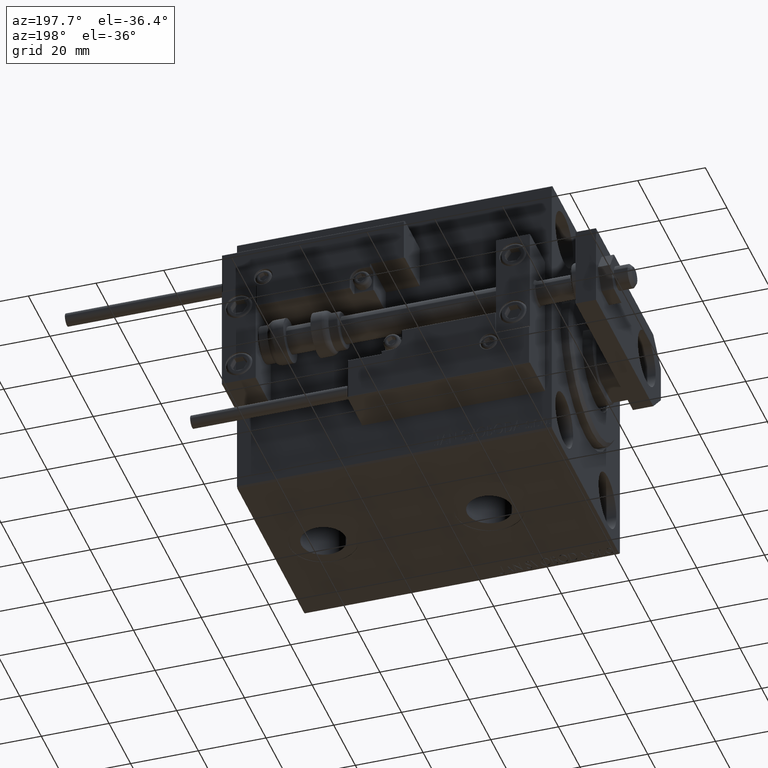
[diagram: clean part render]
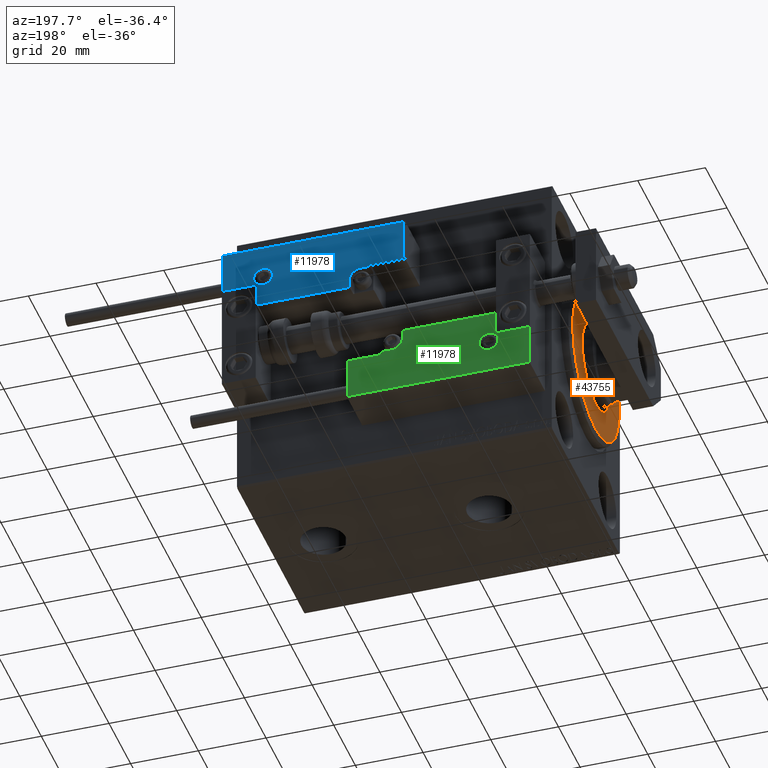
[diagram: same view with three faces highlighted in distinct colors, each labeled with its STEP entity id]
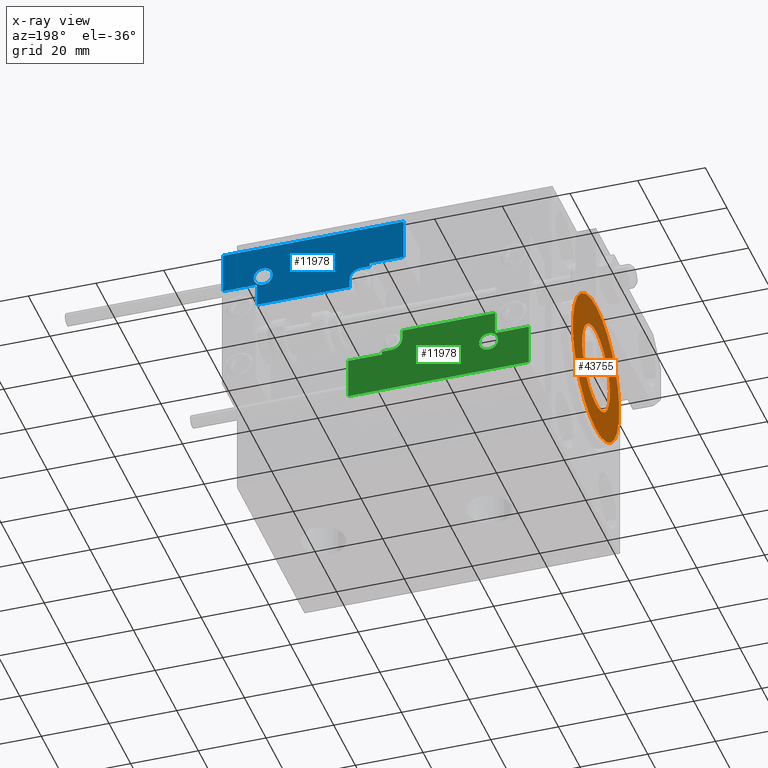
[diagram: x-ray of the same camera — body ghosted, the three highlighted faces saturated]
A machine part, auxiliary view with three faces highlighted in distinct colors.
The next image is the same camera in x-ray (body ghosted, the three faces saturated) — at least one of them is partly hidden behind the body in this view.
Their STEP definitions:

[orange] entity #43755 — the highlighted planar face has unit normal (-1, 0, 0).
#3906 = EDGE_CURVE ( 'NONE', #50449, #18482, #50075, .T. ) ;
#5960 = CIRCLE ( 'NONE', #34213, 21.50000000000000355 ) ;
#6798 = FACE_OUTER_BOUND ( 'NONE', #23059, .T. ) ;
#7332 = ORIENTED_EDGE ( 'NONE', *, *, #3906, .T. ) ;
#9076 = EDGE_CURVE ( 'NONE', #18844, #39266, #5960, .T. ) ;
#9611 = CARTESIAN_POINT ( 'NONE',  ( 3.000000000000000000, 1.561424668912874914E-15, -12.75000000000000000 ) ) ;
#10750 = AXIS2_PLACEMENT_3D ( 'NONE', #42621, #50951, #15493 ) ;
#10964 = DIRECTION ( 'NONE',  ( 0.000000000000000000, 0.000000000000000000, -1.000000000000000000 ) ) ;
#13070 = AXIS2_PLACEMENT_3D ( 'NONE', #42763, #39624, #10964 ) ;
#14222 = CARTESIAN_POINT ( 'NONE',  ( 3.000000000000000000, 0.000000000000000000, 0.000000000000000000 ) ) ;
#14492 = AXIS2_PLACEMENT_3D ( 'NONE', #42144, #25965, #38990 ) ;
#15493 = DIRECTION ( 'NONE',  ( 0.000000000000000000, 0.000000000000000000, -1.000000000000000000 ) ) ;
#15644 = PLANE ( 'NONE',  #13070 ) ;
#16823 = CARTESIAN_POINT ( 'NONE',  ( 3.000000000000000000, 0.000000000000000000, 21.50000000000000355 ) ) ;
#17911 = ORIENTED_EDGE ( 'NONE', *, *, #48264, .T. ) ;
#18482 = VERTEX_POINT ( 'NONE', #30743 ) ;
#18844 = VERTEX_POINT ( 'NONE', #19982 ) ;
#19982 = CARTESIAN_POINT ( 'NONE',  ( 3.000000000000000000, 2.694222958124177598E-15, -21.50000000000000355 ) ) ;
#22615 = AXIS2_PLACEMENT_3D ( 'NONE', #14222, #25930, #30367 ) ;
#23059 = EDGE_LOOP ( 'NONE', ( #41789, #48090 ) ) ;
#23207 = CIRCLE ( 'NONE', #10750, 12.75000000000000000 ) ;
#25930 = DIRECTION ( 'NONE',  ( -1.000000000000000000, 0.000000000000000000, -0.000000000000000000 ) ) ;
#25965 = DIRECTION ( 'NONE',  ( 1.000000000000000000, -0.000000000000000000, 0.000000000000000000 ) ) ;
#30367 = DIRECTION ( 'NONE',  ( 0.000000000000000000, 0.000000000000000000, -1.000000000000000000 ) ) ;
#30743 = CARTESIAN_POINT ( 'NONE',  ( 3.000000000000000000, 0.000000000000000000, 12.75000000000000000 ) ) ;
#31530 = FACE_BOUND ( 'NONE', #39768, .T. ) ;
#34213 = AXIS2_PLACEMENT_3D ( 'NONE', #48705, #40374, #36186 ) ;
#36186 = DIRECTION ( 'NONE',  ( 0.000000000000000000, 0.000000000000000000, -1.000000000000000000 ) ) ;
#36894 = EDGE_CURVE ( 'NONE', #39266, #18844, #46967, .T. ) ;
#38990 = DIRECTION ( 'NONE',  ( 0.000000000000000000, 0.000000000000000000, -1.000000000000000000 ) ) ;
#39266 = VERTEX_POINT ( 'NONE', #16823 ) ;
#39624 = DIRECTION ( 'NONE',  ( 1.000000000000000000, -0.000000000000000000, 0.000000000000000000 ) ) ;
#39768 = EDGE_LOOP ( 'NONE', ( #17911, #7332 ) ) ;
#40374 = DIRECTION ( 'NONE',  ( 1.000000000000000000, -0.000000000000000000, 0.000000000000000000 ) ) ;
#41789 = ORIENTED_EDGE ( 'NONE', *, *, #36894, .T. ) ;
#42144 = CARTESIAN_POINT ( 'NONE',  ( 3.000000000000000000, 0.000000000000000000, 0.000000000000000000 ) ) ;
#42621 = CARTESIAN_POINT ( 'NONE',  ( 3.000000000000000000, 0.000000000000000000, 0.000000000000000000 ) ) ;
#42763 = CARTESIAN_POINT ( 'NONE',  ( 3.000000000000000000, 0.000000000000000000, 0.000000000000000000 ) ) ;
#43755 = ADVANCED_FACE ( 'NONE', ( #6798, #31530 ), #15644, .T. ) ;
#46967 = CIRCLE ( 'NONE', #14492, 21.50000000000000355 ) ;
#48090 = ORIENTED_EDGE ( 'NONE', *, *, #9076, .T. ) ;
#48264 = EDGE_CURVE ( 'NONE', #18482, #50449, #23207, .T. ) ;
#48705 = CARTESIAN_POINT ( 'NONE',  ( 3.000000000000000000, 0.000000000000000000, 0.000000000000000000 ) ) ;
#50075 = CIRCLE ( 'NONE', #22615, 12.75000000000000000 ) ;
#50449 = VERTEX_POINT ( 'NONE', #9611 ) ;
#50951 = DIRECTION ( 'NONE',  ( -1.000000000000000000, 0.000000000000000000, -0.000000000000000000 ) ) ;

[blue] entity #11978 — the highlighted planar face has unit normal (0, 1, -0).
#45 = CARTESIAN_POINT ( 'NONE',  ( -26.99999999999993605, 19.70000000000002061, 14.00000000000000000 ) ) ;
#709 = CARTESIAN_POINT ( 'NONE',  ( 16.69999999999999929, 7.300000000000009592, 14.00000000000000000 ) ) ;
#741 = VECTOR ( 'NONE', #18384, 1000.000000000000000 ) ;
#753 = DIRECTION ( 'NONE',  ( 1.000000000000000000, 0.000000000000000000, 0.000000000000000000 ) ) ;
#1245 = ORIENTED_EDGE ( 'NONE', *, *, #35693, .T. ) ;
#1329 = ORIENTED_EDGE ( 'NONE', *, *, #46479, .T. ) ;
#1488 = LINE ( 'NONE', #34026, #45321 ) ;
#1561 = DIRECTION ( 'NONE',  ( 1.000000000000000000, -0.000000000000000000, 0.000000000000000000 ) ) ;
#2394 = DIRECTION ( 'NONE',  ( 0.000000000000000000, -0.000000000000000000, -1.000000000000000000 ) ) ;
#2874 = CARTESIAN_POINT ( 'NONE',  ( -16.69999999999999218, 0.3000000000000032085, 14.00000000000000000 ) ) ;
#3000 = FACE_OUTER_BOUND ( 'NONE', #40027, .T. ) ;
#3265 = VERTEX_POINT ( 'NONE', #40295 ) ;
#3566 = VERTEX_POINT ( 'NONE', #22168 ) ;
#3751 = CARTESIAN_POINT ( 'NONE',  ( 26.70000000000006324, 19.70000000000001705, 14.00000000000000000 ) ) ;
#3898 = CARTESIAN_POINT ( 'NONE',  ( 13.99999999999999822, 3.000000000000002665, 14.00000000000000000 ) ) ;
#4137 = ORIENTED_EDGE ( 'NONE', *, *, #42583, .T. ) ;
#5067 = EDGE_LOOP ( 'NONE', ( #28540, #1329 ) ) ;
#5182 = EDGE_CURVE ( 'NONE', #28315, #33065, #38896, .T. ) ;
#5783 = DIRECTION ( 'NONE',  ( 1.000000000000000000, 0.000000000000000000, 0.000000000000000000 ) ) ;
#7016 = AXIS2_PLACEMENT_3D ( 'NONE', #3898, #19800, #17203 ) ;
#8054 = CARTESIAN_POINT ( 'NONE',  ( 16.69999999999999929, 6.300000000000003375, 14.00000000000000000 ) ) ;
#8920 = VERTEX_POINT ( 'NONE', #22159 ) ;
#10892 = VECTOR ( 'NONE', #1561, 1000.000000000000000 ) ;
#10946 = VERTEX_POINT ( 'NONE', #30098 ) ;
#11237 = DIRECTION ( 'NONE',  ( 0.000000000000000000, -0.000000000000000000, -1.000000000000000000 ) ) ;
#11978 = ADVANCED_FACE ( 'NONE', ( #42864, #3000 ), #18890, .T. ) ;
#12005 = VECTOR ( 'NONE', #14426, 1000.000000000000000 ) ;
#12943 = ORIENTED_EDGE ( 'NONE', *, *, #26507, .T. ) ;
#13393 = CARTESIAN_POINT ( 'NONE',  ( -16.99999999999999289, 7.300000000000003375, 14.00000000000000000 ) ) ;
#13506 = VECTOR ( 'NONE', #19860, 1000.000000000000000 ) ;
#14426 = DIRECTION ( 'NONE',  ( 1.000000000000000000, -1.734723475976815230E-16, 0.000000000000000000 ) ) ;
#14562 = ORIENTED_EDGE ( 'NONE', *, *, #19692, .T. ) ;
#14983 = DIRECTION ( 'NONE',  ( 1.000000000000000000, 0.000000000000000000, 0.000000000000000000 ) ) ;
#15092 = CARTESIAN_POINT ( 'NONE',  ( 26.70000000000006324, 20.00000000000001776, 14.00000000000000000 ) ) ;
#15513 = VERTEX_POINT ( 'NONE', #709 ) ;
#15658 = AXIS2_PLACEMENT_3D ( 'NONE', #19069, #11237, #753 ) ;
#16001 = EDGE_CURVE ( 'NONE', #8920, #18211, #45714, .T. ) ;
#16276 = ORIENTED_EDGE ( 'NONE', *, *, #16001, .T. ) ;
#16617 = VERTEX_POINT ( 'NONE', #8054 ) ;
#16740 = VERTEX_POINT ( 'NONE', #22319 ) ;
#17071 = CIRCLE ( 'NONE', #26224, 2.800000000000000266 ) ;
#17203 = DIRECTION ( 'NONE',  ( 1.000000000000000000, 0.000000000000000000, 0.000000000000000000 ) ) ;
#17778 = CARTESIAN_POINT ( 'NONE',  ( -14.79999999999994920, 9.800000000000004263, 14.00000000000000000 ) ) ;
#18211 = VERTEX_POINT ( 'NONE', #42363 ) ;
#18317 = CARTESIAN_POINT ( 'NONE',  ( -26.69999999999994600, 7.000000000000005329, 14.00000000000000000 ) ) ;
#18384 = DIRECTION ( 'NONE',  ( 9.912705577010318647E-16, 1.000000000000000000, 0.000000000000000000 ) ) ;
#18433 = VERTEX_POINT ( 'NONE', #2874 ) ;
#18890 = PLANE ( 'NONE',  #41862 ) ;
#19069 = CARTESIAN_POINT ( 'NONE',  ( -14.79999999999994920, 9.800000000000004263, 14.00000000000000000 ) ) ;
#19417 = ORIENTED_EDGE ( 'NONE', *, *, #22015, .T. ) ;
#19692 = EDGE_CURVE ( 'NONE', #15513, #32171, #1488, .T. ) ;
#19800 = DIRECTION ( 'NONE',  ( 0.000000000000000000, -0.000000000000000000, -1.000000000000000000 ) ) ;
#19860 = DIRECTION ( 'NONE',  ( -1.000000000000000000, 6.424901762877063495E-17, -0.000000000000000000 ) ) ;
#20298 = EDGE_CURVE ( 'NONE', #10946, #3566, #43628, .T. ) ;
#22015 = EDGE_CURVE ( 'NONE', #3566, #16617, #43167, .T. ) ;
#22159 = CARTESIAN_POINT ( 'NONE',  ( -26.69999999999994600, 7.300000000000005151, 14.00000000000000000 ) ) ;
#22168 = CARTESIAN_POINT ( 'NONE',  ( 13.99999999999999822, 6.300000000000001599, 14.00000000000000000 ) ) ;
#22319 = CARTESIAN_POINT ( 'NONE',  ( -17.59999999999994813, 9.800000000000004263, 14.00000000000000000 ) ) ;
#22540 = CARTESIAN_POINT ( 'NONE',  ( 16.69999999999999929, 7.000000000000009770, 14.00000000000000000 ) ) ;
#22794 = LINE ( 'NONE', #22540, #741 ) ;
#23114 = CARTESIAN_POINT ( 'NONE',  ( 10.69999999999999929, 3.000000000000003109, 14.00000000000000000 ) ) ;
#25502 = CARTESIAN_POINT ( 'NONE',  ( 11.00000000000000000, 0.3000000000000032085, 14.00000000000000000 ) ) ;
#25526 = LINE ( 'NONE', #38560, #38867 ) ;
#25973 = CARTESIAN_POINT ( 'NONE',  ( -26.69999999999993534, 19.70000000000002061, 14.00000000000000000 ) ) ;
#26167 = EDGE_CURVE ( 'NONE', #3265, #10946, #51000, .T. ) ;
#26224 = AXIS2_PLACEMENT_3D ( 'NONE', #17778, #2394, #5783 ) ;
#26507 = EDGE_CURVE ( 'NONE', #18211, #18433, #25526, .T. ) ;
#27009 = DIRECTION ( 'NONE',  ( -0.000000000000000000, 1.000000000000000000, -0.000000000000000000 ) ) ;
#27195 = ORIENTED_EDGE ( 'NONE', *, *, #5182, .T. ) ;
#28315 = VERTEX_POINT ( 'NONE', #3751 ) ;
#28540 = ORIENTED_EDGE ( 'NONE', *, *, #39656, .T. ) ;
#30098 = CARTESIAN_POINT ( 'NONE',  ( 10.69999999999999929, 3.000000000000003109, 14.00000000000000000 ) ) ;
#31152 = CARTESIAN_POINT ( 'NONE',  ( 26.70000000000006324, 7.300000000000007816, 14.00000000000000000 ) ) ;
#32171 = VERTEX_POINT ( 'NONE', #31152 ) ;
#33065 = VERTEX_POINT ( 'NONE', #25973 ) ;
#34026 = CARTESIAN_POINT ( 'NONE',  ( 27.00000000000006395, 7.300000000000007816, 14.00000000000000000 ) ) ;
#34061 = DIRECTION ( 'NONE',  ( 1.000000000000000000, 5.782411586589357639E-16, -0.000000000000000000 ) ) ;
#34469 = EDGE_CURVE ( 'NONE', #16617, #15513, #22794, .T. ) ;
#34781 = CARTESIAN_POINT ( 'NONE',  ( 0.000000000000000000, 0.000000000000000000, 14.00000000000000000 ) ) ;
#35693 = EDGE_CURVE ( 'NONE', #18433, #3265, #41171, .T. ) ;
#35810 = ORIENTED_EDGE ( 'NONE', *, *, #42939, .T. ) ;
#36382 = VECTOR ( 'NONE', #27009, 1000.000000000000000 ) ;
#37978 = CARTESIAN_POINT ( 'NONE',  ( 17.00000000000000000, 6.300000000000003375, 14.00000000000000000 ) ) ;
#38560 = CARTESIAN_POINT ( 'NONE',  ( -16.69999999999999218, 3.252606517456513302E-15, 14.00000000000000000 ) ) ;
#38867 = VECTOR ( 'NONE', #42467, 1000.000000000000000 ) ;
#38896 = LINE ( 'NONE', #45, #13506 ) ;
#39656 = EDGE_CURVE ( 'NONE', #47803, #16740, #17071, .T. ) ;
#40027 = EDGE_LOOP ( 'NONE', ( #12943, #1245, #40317, #40464, #19417, #49556, #14562, #35810, #27195, #4137, #16276 ) ) ;
#40295 = CARTESIAN_POINT ( 'NONE',  ( 10.69999999999999929, 0.3000000000000032085, 14.00000000000000000 ) ) ;
#40317 = ORIENTED_EDGE ( 'NONE', *, *, #26167, .T. ) ;
#40464 = ORIENTED_EDGE ( 'NONE', *, *, #20298, .T. ) ;
#40843 = DIRECTION ( 'NONE',  ( 1.000000000000000000, -1.734723475976796001E-16, 0.000000000000000000 ) ) ;
#41171 = LINE ( 'NONE', #25502, #10892 ) ;
#41222 = VECTOR ( 'NONE', #34061, 1000.000000000000000 ) ;
#41862 = AXIS2_PLACEMENT_3D ( 'NONE', #34781, #50691, #14983 ) ;
#42201 = VECTOR ( 'NONE', #46895, 1000.000000000000000 ) ;
#42282 = LINE ( 'NONE', #18317, #50465 ) ;
#42363 = CARTESIAN_POINT ( 'NONE',  ( -16.69999999999999218, 7.300000000000003375, 14.00000000000000000 ) ) ;
#42467 = DIRECTION ( 'NONE',  ( 0.000000000000000000, -1.000000000000000000, 0.000000000000000000 ) ) ;
#42583 = EDGE_CURVE ( 'NONE', #33065, #8920, #42282, .T. ) ;
#42864 = FACE_BOUND ( 'NONE', #5067, .T. ) ;
#42939 = EDGE_CURVE ( 'NONE', #32171, #28315, #50551, .T. ) ;
#43167 = LINE ( 'NONE', #37978, #41222 ) ;
#43628 = CIRCLE ( 'NONE', #7016, 3.299999999999997158 ) ;
#45321 = VECTOR ( 'NONE', #40843, 1000.000000000000000 ) ;
#45714 = LINE ( 'NONE', #13393, #12005 ) ;
#46201 = DIRECTION ( 'NONE',  ( -8.006416042969869188E-16, -1.000000000000000000, 0.000000000000000000 ) ) ;
#46442 = CIRCLE ( 'NONE', #15658, 2.800000000000000266 ) ;
#46479 = EDGE_CURVE ( 'NONE', #16740, #47803, #46442, .T. ) ;
#46895 = DIRECTION ( 'NONE',  ( 0.000000000000000000, 1.000000000000000000, -0.000000000000000000 ) ) ;
#47803 = VERTEX_POINT ( 'NONE', #49237 ) ;
#49237 = CARTESIAN_POINT ( 'NONE',  ( -11.99999999999994849, 9.800000000000004263, 14.00000000000000000 ) ) ;
#49556 = ORIENTED_EDGE ( 'NONE', *, *, #34469, .T. ) ;
#50465 = VECTOR ( 'NONE', #46201, 1000.000000000000000 ) ;
#50551 = LINE ( 'NONE', #15092, #42201 ) ;
#50691 = DIRECTION ( 'NONE',  ( -0.000000000000000000, 0.000000000000000000, 1.000000000000000000 ) ) ;
#51000 = LINE ( 'NONE', #23114, #36382 ) ;

[green] entity #11978 — the highlighted planar face has unit normal (-0, 1, -0).
#45 = CARTESIAN_POINT ( 'NONE',  ( -26.99999999999993605, 19.70000000000002061, 14.00000000000000000 ) ) ;
#709 = CARTESIAN_POINT ( 'NONE',  ( 16.69999999999999929, 7.300000000000009592, 14.00000000000000000 ) ) ;
#741 = VECTOR ( 'NONE', #18384, 1000.000000000000000 ) ;
#753 = DIRECTION ( 'NONE',  ( 1.000000000000000000, 0.000000000000000000, 0.000000000000000000 ) ) ;
#1245 = ORIENTED_EDGE ( 'NONE', *, *, #35693, .T. ) ;
#1329 = ORIENTED_EDGE ( 'NONE', *, *, #46479, .T. ) ;
#1488 = LINE ( 'NONE', #34026, #45321 ) ;
#1561 = DIRECTION ( 'NONE',  ( 1.000000000000000000, -0.000000000000000000, 0.000000000000000000 ) ) ;
#2394 = DIRECTION ( 'NONE',  ( 0.000000000000000000, -0.000000000000000000, -1.000000000000000000 ) ) ;
#2874 = CARTESIAN_POINT ( 'NONE',  ( -16.69999999999999218, 0.3000000000000032085, 14.00000000000000000 ) ) ;
#3000 = FACE_OUTER_BOUND ( 'NONE', #40027, .T. ) ;
#3265 = VERTEX_POINT ( 'NONE', #40295 ) ;
#3566 = VERTEX_POINT ( 'NONE', #22168 ) ;
#3751 = CARTESIAN_POINT ( 'NONE',  ( 26.70000000000006324, 19.70000000000001705, 14.00000000000000000 ) ) ;
#3898 = CARTESIAN_POINT ( 'NONE',  ( 13.99999999999999822, 3.000000000000002665, 14.00000000000000000 ) ) ;
#4137 = ORIENTED_EDGE ( 'NONE', *, *, #42583, .T. ) ;
#5067 = EDGE_LOOP ( 'NONE', ( #28540, #1329 ) ) ;
#5182 = EDGE_CURVE ( 'NONE', #28315, #33065, #38896, .T. ) ;
#5783 = DIRECTION ( 'NONE',  ( 1.000000000000000000, 0.000000000000000000, 0.000000000000000000 ) ) ;
#7016 = AXIS2_PLACEMENT_3D ( 'NONE', #3898, #19800, #17203 ) ;
#8054 = CARTESIAN_POINT ( 'NONE',  ( 16.69999999999999929, 6.300000000000003375, 14.00000000000000000 ) ) ;
#8920 = VERTEX_POINT ( 'NONE', #22159 ) ;
#10892 = VECTOR ( 'NONE', #1561, 1000.000000000000000 ) ;
#10946 = VERTEX_POINT ( 'NONE', #30098 ) ;
#11237 = DIRECTION ( 'NONE',  ( 0.000000000000000000, -0.000000000000000000, -1.000000000000000000 ) ) ;
#11978 = ADVANCED_FACE ( 'NONE', ( #42864, #3000 ), #18890, .T. ) ;
#12005 = VECTOR ( 'NONE', #14426, 1000.000000000000000 ) ;
#12943 = ORIENTED_EDGE ( 'NONE', *, *, #26507, .T. ) ;
#13393 = CARTESIAN_POINT ( 'NONE',  ( -16.99999999999999289, 7.300000000000003375, 14.00000000000000000 ) ) ;
#13506 = VECTOR ( 'NONE', #19860, 1000.000000000000000 ) ;
#14426 = DIRECTION ( 'NONE',  ( 1.000000000000000000, -1.734723475976815230E-16, 0.000000000000000000 ) ) ;
#14562 = ORIENTED_EDGE ( 'NONE', *, *, #19692, .T. ) ;
#14983 = DIRECTION ( 'NONE',  ( 1.000000000000000000, 0.000000000000000000, 0.000000000000000000 ) ) ;
#15092 = CARTESIAN_POINT ( 'NONE',  ( 26.70000000000006324, 20.00000000000001776, 14.00000000000000000 ) ) ;
#15513 = VERTEX_POINT ( 'NONE', #709 ) ;
#15658 = AXIS2_PLACEMENT_3D ( 'NONE', #19069, #11237, #753 ) ;
#16001 = EDGE_CURVE ( 'NONE', #8920, #18211, #45714, .T. ) ;
#16276 = ORIENTED_EDGE ( 'NONE', *, *, #16001, .T. ) ;
#16617 = VERTEX_POINT ( 'NONE', #8054 ) ;
#16740 = VERTEX_POINT ( 'NONE', #22319 ) ;
#17071 = CIRCLE ( 'NONE', #26224, 2.800000000000000266 ) ;
#17203 = DIRECTION ( 'NONE',  ( 1.000000000000000000, 0.000000000000000000, 0.000000000000000000 ) ) ;
#17778 = CARTESIAN_POINT ( 'NONE',  ( -14.79999999999994920, 9.800000000000004263, 14.00000000000000000 ) ) ;
#18211 = VERTEX_POINT ( 'NONE', #42363 ) ;
#18317 = CARTESIAN_POINT ( 'NONE',  ( -26.69999999999994600, 7.000000000000005329, 14.00000000000000000 ) ) ;
#18384 = DIRECTION ( 'NONE',  ( 9.912705577010318647E-16, 1.000000000000000000, 0.000000000000000000 ) ) ;
#18433 = VERTEX_POINT ( 'NONE', #2874 ) ;
#18890 = PLANE ( 'NONE',  #41862 ) ;
#19069 = CARTESIAN_POINT ( 'NONE',  ( -14.79999999999994920, 9.800000000000004263, 14.00000000000000000 ) ) ;
#19417 = ORIENTED_EDGE ( 'NONE', *, *, #22015, .T. ) ;
#19692 = EDGE_CURVE ( 'NONE', #15513, #32171, #1488, .T. ) ;
#19800 = DIRECTION ( 'NONE',  ( 0.000000000000000000, -0.000000000000000000, -1.000000000000000000 ) ) ;
#19860 = DIRECTION ( 'NONE',  ( -1.000000000000000000, 6.424901762877063495E-17, -0.000000000000000000 ) ) ;
#20298 = EDGE_CURVE ( 'NONE', #10946, #3566, #43628, .T. ) ;
#22015 = EDGE_CURVE ( 'NONE', #3566, #16617, #43167, .T. ) ;
#22159 = CARTESIAN_POINT ( 'NONE',  ( -26.69999999999994600, 7.300000000000005151, 14.00000000000000000 ) ) ;
#22168 = CARTESIAN_POINT ( 'NONE',  ( 13.99999999999999822, 6.300000000000001599, 14.00000000000000000 ) ) ;
#22319 = CARTESIAN_POINT ( 'NONE',  ( -17.59999999999994813, 9.800000000000004263, 14.00000000000000000 ) ) ;
#22540 = CARTESIAN_POINT ( 'NONE',  ( 16.69999999999999929, 7.000000000000009770, 14.00000000000000000 ) ) ;
#22794 = LINE ( 'NONE', #22540, #741 ) ;
#23114 = CARTESIAN_POINT ( 'NONE',  ( 10.69999999999999929, 3.000000000000003109, 14.00000000000000000 ) ) ;
#25502 = CARTESIAN_POINT ( 'NONE',  ( 11.00000000000000000, 0.3000000000000032085, 14.00000000000000000 ) ) ;
#25526 = LINE ( 'NONE', #38560, #38867 ) ;
#25973 = CARTESIAN_POINT ( 'NONE',  ( -26.69999999999993534, 19.70000000000002061, 14.00000000000000000 ) ) ;
#26167 = EDGE_CURVE ( 'NONE', #3265, #10946, #51000, .T. ) ;
#26224 = AXIS2_PLACEMENT_3D ( 'NONE', #17778, #2394, #5783 ) ;
#26507 = EDGE_CURVE ( 'NONE', #18211, #18433, #25526, .T. ) ;
#27009 = DIRECTION ( 'NONE',  ( -0.000000000000000000, 1.000000000000000000, -0.000000000000000000 ) ) ;
#27195 = ORIENTED_EDGE ( 'NONE', *, *, #5182, .T. ) ;
#28315 = VERTEX_POINT ( 'NONE', #3751 ) ;
#28540 = ORIENTED_EDGE ( 'NONE', *, *, #39656, .T. ) ;
#30098 = CARTESIAN_POINT ( 'NONE',  ( 10.69999999999999929, 3.000000000000003109, 14.00000000000000000 ) ) ;
#31152 = CARTESIAN_POINT ( 'NONE',  ( 26.70000000000006324, 7.300000000000007816, 14.00000000000000000 ) ) ;
#32171 = VERTEX_POINT ( 'NONE', #31152 ) ;
#33065 = VERTEX_POINT ( 'NONE', #25973 ) ;
#34026 = CARTESIAN_POINT ( 'NONE',  ( 27.00000000000006395, 7.300000000000007816, 14.00000000000000000 ) ) ;
#34061 = DIRECTION ( 'NONE',  ( 1.000000000000000000, 5.782411586589357639E-16, -0.000000000000000000 ) ) ;
#34469 = EDGE_CURVE ( 'NONE', #16617, #15513, #22794, .T. ) ;
#34781 = CARTESIAN_POINT ( 'NONE',  ( 0.000000000000000000, 0.000000000000000000, 14.00000000000000000 ) ) ;
#35693 = EDGE_CURVE ( 'NONE', #18433, #3265, #41171, .T. ) ;
#35810 = ORIENTED_EDGE ( 'NONE', *, *, #42939, .T. ) ;
#36382 = VECTOR ( 'NONE', #27009, 1000.000000000000000 ) ;
#37978 = CARTESIAN_POINT ( 'NONE',  ( 17.00000000000000000, 6.300000000000003375, 14.00000000000000000 ) ) ;
#38560 = CARTESIAN_POINT ( 'NONE',  ( -16.69999999999999218, 3.252606517456513302E-15, 14.00000000000000000 ) ) ;
#38867 = VECTOR ( 'NONE', #42467, 1000.000000000000000 ) ;
#38896 = LINE ( 'NONE', #45, #13506 ) ;
#39656 = EDGE_CURVE ( 'NONE', #47803, #16740, #17071, .T. ) ;
#40027 = EDGE_LOOP ( 'NONE', ( #12943, #1245, #40317, #40464, #19417, #49556, #14562, #35810, #27195, #4137, #16276 ) ) ;
#40295 = CARTESIAN_POINT ( 'NONE',  ( 10.69999999999999929, 0.3000000000000032085, 14.00000000000000000 ) ) ;
#40317 = ORIENTED_EDGE ( 'NONE', *, *, #26167, .T. ) ;
#40464 = ORIENTED_EDGE ( 'NONE', *, *, #20298, .T. ) ;
#40843 = DIRECTION ( 'NONE',  ( 1.000000000000000000, -1.734723475976796001E-16, 0.000000000000000000 ) ) ;
#41171 = LINE ( 'NONE', #25502, #10892 ) ;
#41222 = VECTOR ( 'NONE', #34061, 1000.000000000000000 ) ;
#41862 = AXIS2_PLACEMENT_3D ( 'NONE', #34781, #50691, #14983 ) ;
#42201 = VECTOR ( 'NONE', #46895, 1000.000000000000000 ) ;
#42282 = LINE ( 'NONE', #18317, #50465 ) ;
#42363 = CARTESIAN_POINT ( 'NONE',  ( -16.69999999999999218, 7.300000000000003375, 14.00000000000000000 ) ) ;
#42467 = DIRECTION ( 'NONE',  ( 0.000000000000000000, -1.000000000000000000, 0.000000000000000000 ) ) ;
#42583 = EDGE_CURVE ( 'NONE', #33065, #8920, #42282, .T. ) ;
#42864 = FACE_BOUND ( 'NONE', #5067, .T. ) ;
#42939 = EDGE_CURVE ( 'NONE', #32171, #28315, #50551, .T. ) ;
#43167 = LINE ( 'NONE', #37978, #41222 ) ;
#43628 = CIRCLE ( 'NONE', #7016, 3.299999999999997158 ) ;
#45321 = VECTOR ( 'NONE', #40843, 1000.000000000000000 ) ;
#45714 = LINE ( 'NONE', #13393, #12005 ) ;
#46201 = DIRECTION ( 'NONE',  ( -8.006416042969869188E-16, -1.000000000000000000, 0.000000000000000000 ) ) ;
#46442 = CIRCLE ( 'NONE', #15658, 2.800000000000000266 ) ;
#46479 = EDGE_CURVE ( 'NONE', #16740, #47803, #46442, .T. ) ;
#46895 = DIRECTION ( 'NONE',  ( 0.000000000000000000, 1.000000000000000000, -0.000000000000000000 ) ) ;
#47803 = VERTEX_POINT ( 'NONE', #49237 ) ;
#49237 = CARTESIAN_POINT ( 'NONE',  ( -11.99999999999994849, 9.800000000000004263, 14.00000000000000000 ) ) ;
#49556 = ORIENTED_EDGE ( 'NONE', *, *, #34469, .T. ) ;
#50465 = VECTOR ( 'NONE', #46201, 1000.000000000000000 ) ;
#50551 = LINE ( 'NONE', #15092, #42201 ) ;
#50691 = DIRECTION ( 'NONE',  ( -0.000000000000000000, 0.000000000000000000, 1.000000000000000000 ) ) ;
#51000 = LINE ( 'NONE', #23114, #36382 ) ;